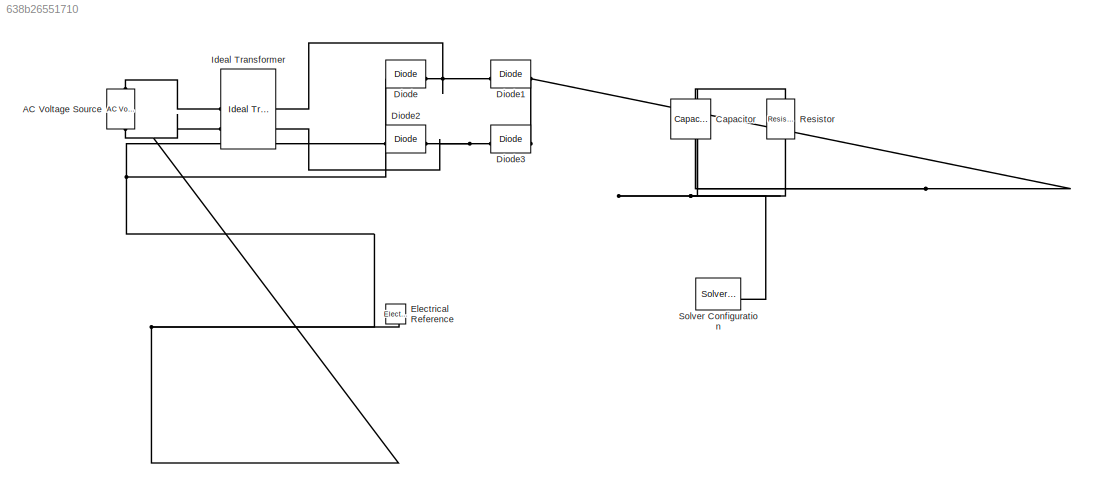
MODEL slx_638b26551710
KIND model
CONFIG AbsTol = auto
CONFIG EnableMultiTasking = off
CONFIG FixedStep = auto
CONFIG MaxStep = auto
CONFIG MinStep = auto
CONFIG RelTol = 1e-3
CONFIG SampleTimeConstraint = Unconstrained
CONFIG SolverName = VariableStepAuto
CONFIG StartTime = 0.0
CONFIG StopTime = 0.1
BLOCK [Reference] AC Voltage Source  REF=fl_lib/Electrical/Electrical Sources/AC Voltage Source
  NameLocation = right
  SourceBlock = fl_lib/Electrical/Electrical Sources/AC Voltage Source
  SourceType = AC Voltage Source
BLOCK [Reference] Capacitor  REF=fl_lib/Electrical/Electrical Elements/Capacitor
  NameLocation = left
  SourceBlock = fl_lib/Electrical/Electrical Elements/Capacitor
  SourceType = Capacitor
BLOCK [Reference] Diode  REF=fl_lib/Electrical/Electrical Elements/Diode
  SourceBlock = fl_lib/Electrical/Electrical Elements/Diode
  SourceType = Diode
BLOCK [Reference] Diode1  REF=fl_lib/Electrical/Electrical Elements/Diode
  SourceBlock = fl_lib/Electrical/Electrical Elements/Diode
  SourceType = Diode
BLOCK [Reference] Diode2  REF=fl_lib/Electrical/Electrical Elements/Diode
  SourceBlock = fl_lib/Electrical/Electrical Elements/Diode
  SourceType = Diode
BLOCK [Reference] Diode3  REF=fl_lib/Electrical/Electrical Elements/Diode
  SourceBlock = fl_lib/Electrical/Electrical Elements/Diode
  SourceType = Diode
BLOCK [Reference] Electrical Reference  REF=fl_lib/Electrical/Electrical Elements/Electrical Reference
  LibrarySourceBlock = ee_lib/Connectors &\nReferences/Electrical Reference
  NameLocation = right
  SourceBlock = fl_lib/Electrical/Electrical Elements/Electrical Reference
  SourceType = Electrical Reference
BLOCK [Reference] Ideal Transformer  REF=fl_lib/Electrical/Electrical Elements/Ideal Transformer
  SourceBlock = fl_lib/Electrical/Electrical Elements/Ideal Transformer
  SourceType = Ideal Transformer
BLOCK [Reference] Resistor  REF=fl_lib/Electrical/Electrical Elements/Resistor
  NameLocation = left
  SourceBlock = fl_lib/Electrical/Electrical Elements/Resistor
  SourceType = Resistor
BLOCK [Reference] Solver Configuration  REF=nesl_utility/Solver
Configuration
  SourceBlock = nesl_utility/Solver\nConfiguration
  SourceType = Solver\nConfiguration
PLINE AC Voltage Source:LConn1 -- Ideal Transformer:LConn1
PNET net1: AC Voltage Source:RConn1 -- Capacitor:RConn1 -- Diode2:LConn1 -- Diode:LConn1 -- Electrical Reference:LConn1 -- Ideal Transformer:LConn2 -- Resistor:RConn1 -- Solver Configuration:RConn1
PNET net2: Capacitor:LConn1 -- Diode1:RConn1 -- Diode3:RConn1 -- Resistor:LConn1
PNET net3: Diode1:LConn1 -- Diode:RConn1 -- Ideal Transformer:RConn1
PNET net4: Diode2:RConn1 -- Diode3:LConn1 -- Ideal Transformer:RConn2
note: PNET lines group multi-terminal physical nets as a canonical sorted terminal list (undirected conserving connections); 2-terminal nets keep the pairwise PLINE form
